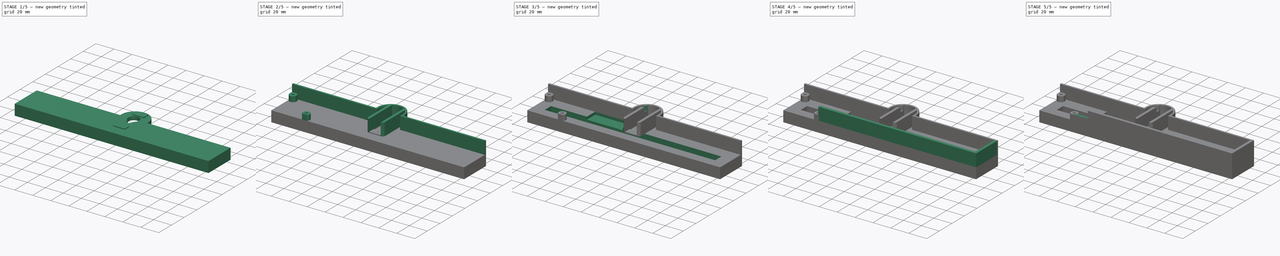
[diagram: build sequence overview — one tinted view per stage of 5, left to right]
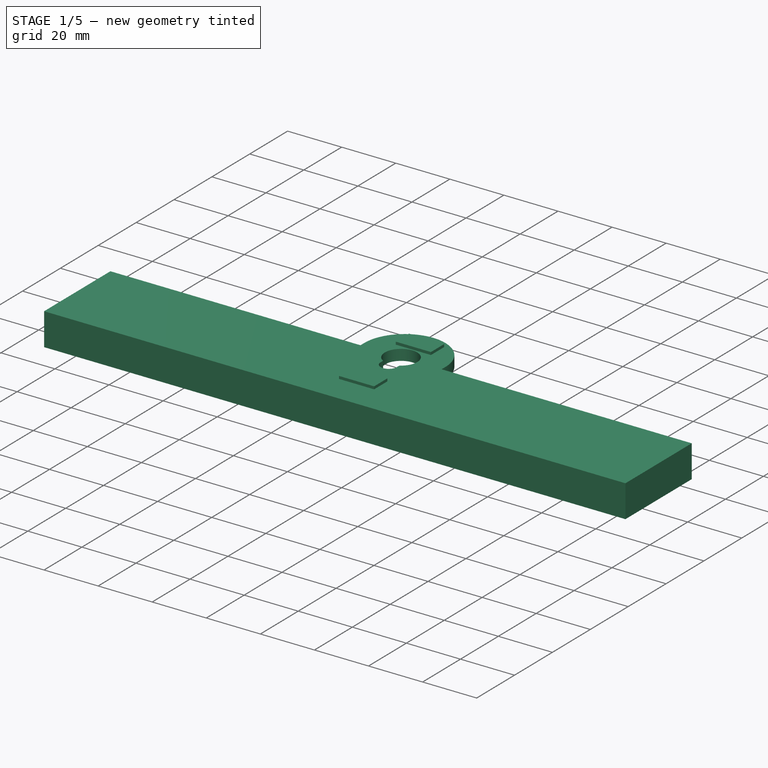
[diagram: stage 1 of 5 — iso view after this stage's code; geometry added in this stage tinted green]
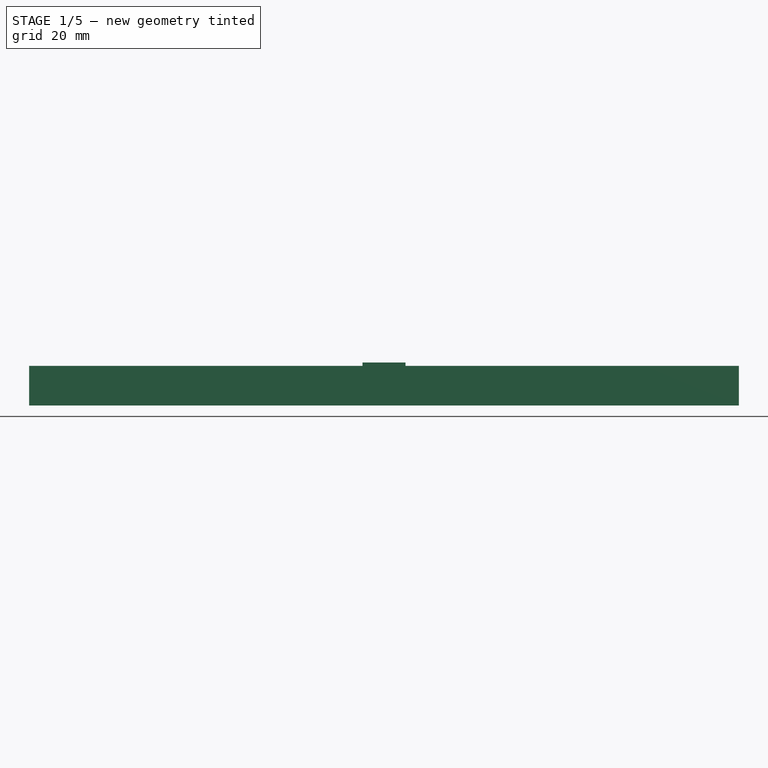
[diagram: stage 1 of 5 — front view after this stage's code; geometry added in this stage tinted green]
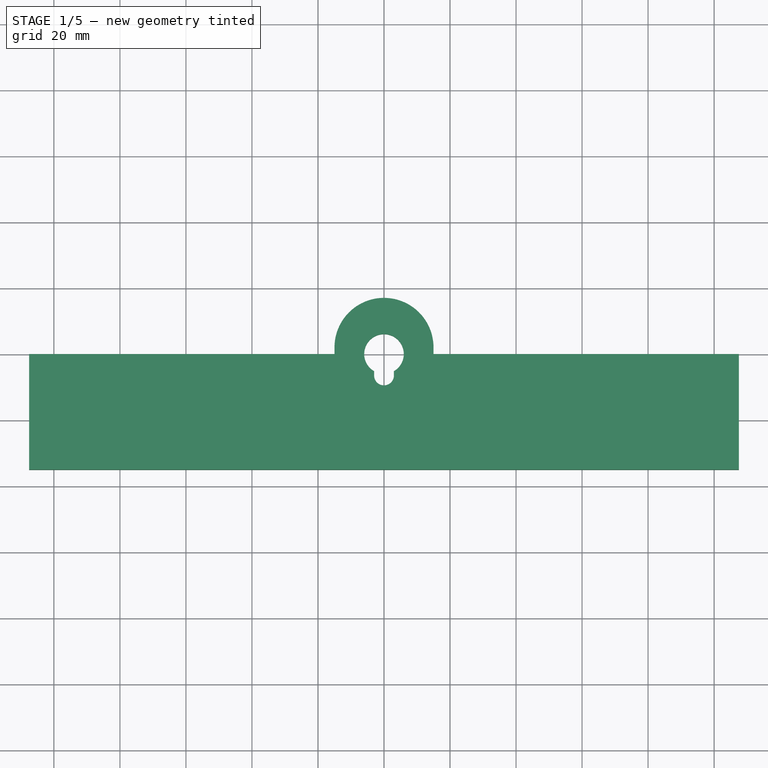
[diagram: stage 1 of 5 — top view after this stage's code; geometry added in this stage tinted green]
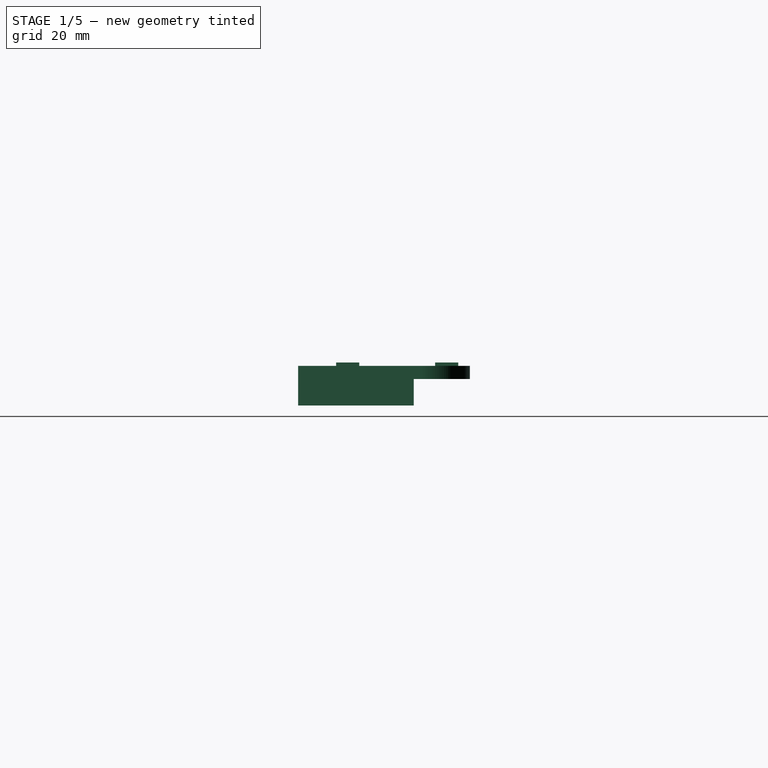
[diagram: stage 1 of 5 — right view after this stage's code; geometry added in this stage tinted green]
FCSTD DOCUMENT  (FreeCAD 0.20R29410 (Git))
Label: kitathermometer
License: All rights reserved
LicenseURL: http://en.wikipedia.org/wiki/All_rights_reserved
objects: Sketcher::SketchObject×19, PartDesign::Pad×11, PartDesign::Pocket×8, PartDesign::Fillet×1, PartDesign::Body×1
note: 60 computed .brp shape members not serialized (recipe doc carries the construction recipe); baked Part::Feature solids carry a one-line shape summary decoded from their .brp

FEATURE [Sketcher::SketchObject] Sketch
  FullyConstrained = true
  MapMode = 5
  Support = -> [XY_Plane]
  sketch-geometry (6):
    g0: LineSegment StartX=107.5 StartY=0 StartZ=0 EndX=107.5 EndY=-35 EndZ=0
    g1: LineSegment StartX=107.5 StartY=-35 StartZ=0 EndX=-107.5 EndY=-35 EndZ=0
    g2: LineSegment StartX=-107.5 StartY=-35 StartZ=0 EndX=-107.5 EndY=0 EndZ=0
    g3: LineSegment StartX=-107.5 StartY=0 StartZ=0 EndX=-0.930233 EndY=-9.95664 EndZ=0
    g4: LineSegment StartX=0.930233 StartY=-9.95664 StartZ=0 EndX=107.5 EndY=0 EndZ=0
    g5: ArcOfCircle CenterX=0 CenterY=0 CenterZ=0 NormalX=0 NormalY=0 NormalZ=1 AngleXU=0 Radius=10 StartAngle=4.61923 EndAngle=4.80555
  constraints (16):
    c: Coincident(g0,g1)
    c: Coincident(g1,g2)
    c: Horizontal(g1)
    c: Vertical(g0)
    c: Vertical(g2)
    c: DistanceX(g2,g0) = 215
    c: DistanceY(g2,g2) = 35
    c: Coincident(g3,g2)
    c: Coincident(g4,g0)
    c: Equal(g4,g3)
    c: Coincident(g5,g-1)
    c: Radius(g5) = 10
    c: Tangent(g3,g5) = -1.5708
    c: Tangent(g4,g5) = -1.5708
    c: Horizontal(g0,g2)
    c: Horizontal(g2,g5)
FEATURE [PartDesign::Pad] Pad
  Direction = (0,0,1)
  Length = 8
  Length2 = 10
  Profile = -> Sketch
  ReferenceAxis = -> Sketch [N_Axis]
  Type = 0
FEATURE [Sketcher::SketchObject] Sketch001
  ExternalGeometry = -> [Pad]
  FullyConstrained = true
  MapMode = 5
  Placement = pos=(0,0,8) rot=(0,0,1;0rad)
  Support = -> [Pad]
  sketch-geometry (8):
    g0: LineSegment StartX=107.5 StartY=0 StartZ=0 EndX=107.5 EndY=-35 EndZ=0
    g1: LineSegment StartX=107.5 StartY=-35 StartZ=0 EndX=-107.5 EndY=-35 EndZ=0
    g2: LineSegment StartX=-107.5 StartY=-35 StartZ=0 EndX=-107.5 EndY=0 EndZ=0
    g3: LineSegment StartX=-107.5 StartY=0 StartZ=0 EndX=-15 EndY=0 EndZ=0
    g4: LineSegment StartX=-15 StartY=0 StartZ=0 EndX=-15 EndY=2 EndZ=0
    g5: LineSegment StartX=15 StartY=2 StartZ=0 EndX=15 EndY=0 EndZ=0
    g6: LineSegment StartX=15 StartY=0 StartZ=0 EndX=107.5 EndY=0 EndZ=0
    g7: ArcOfCircle CenterX=0 CenterY=2 CenterZ=0 NormalX=0 NormalY=0 NormalZ=1 AngleXU=0 Radius=15 StartAngle=0 EndAngle=3.14159
  constraints (23):
    c: Coincident(g0,g1)
    c: Coincident(g1,g2)
    c: Vertical(g0)
    c: Vertical(g2)
    c: PointOnObject(g3,g-1)
    c: Coincident(g3,g4)
    c: Vertical(g4)
    c: PointOnObject(g5,g-1)
    c: Vertical(g5)
    c: Coincident(g5,g6)
    c: Coincident(g6,g0)
    c: Horizontal(g6)
    c: Horizontal(g4,g5)
    c: PointOnObject(g7,g-2)
    c: Coincident(g7,g4)
    c: Coincident(g5,g7)
    c: Coincident(g1,g-3)
    c: Coincident(g0,g-3)
    c: Radius(g7) = 15
    c: DistanceY(g4,g4) = 2
    c: Horizontal(g5,g7)
    c: Coincident(g2,g3)
    c: Horizontal(g3)
FEATURE [PartDesign::Pad] Pad001
  BaseFeature = -> Pad
  Direction = (0,0,1)
  Length = 4
  Length2 = 10
  Profile = -> Sketch001
  ReferenceAxis = -> Sketch001 [N_Axis]
  Type = 0
FEATURE [Sketcher::SketchObject] Sketch002
  FullyConstrained = true
  MapMode = 5
  Placement = pos=(0,0,12) rot=(0,0,1;0rad)
  Support = -> [Pad001]
  sketch-geometry (4):
    g0: ArcOfCircle CenterX=0 CenterY=0 CenterZ=0 NormalX=0 NormalY=0 NormalZ=1 AngleXU=0 Radius=6 StartAngle=5.23599 EndAngle=10.472
    g1: ArcOfCircle CenterX=0 CenterY=-6.5 CenterZ=0 NormalX=0 NormalY=0 NormalZ=1 AngleXU=0 Radius=3 StartAngle=3.14159 EndAngle=6.28319
    g2: LineSegment StartX=3 StartY=-5.19615 StartZ=0 EndX=3 EndY=-6.5 EndZ=0
    g3: LineSegment StartX=-3 StartY=-5.19615 StartZ=0 EndX=-3 EndY=-6.5 EndZ=0
  constraints (13):
    c: Coincident(g0,g-1)
    c: PointOnObject(g1,g-2)
    c: Radius(g0) = 6
    c: Radius(g1) = 3
    c: Horizontal(g1,g1)
    c: Horizontal(g1,g1)
    c: Coincident(g2,g0)
    c: Coincident(g2,g1)
    c: Coincident(g3,g0)
    c: Coincident(g3,g1)
    c: Vertical(g2)
    c: Vertical(g3)
    c: DistanceY(g1,g0) = 6.5
FEATURE [PartDesign::Pocket] Pocket
  BaseFeature = -> Pad001
  Direction = (0,0,-1)
  Length = 5
  Length2 = 5
  Profile = -> Sketch002
  ReferenceAxis = -> Sketch002 [N_Axis]
  Type = 0
FEATURE [Sketcher::SketchObject] Sketch003
  FullyConstrained = true
  MapMode = 5
  Placement = pos=(0,0,12) rot=(0,0,1;0rad)
  Support = -> [Pocket]
  sketch-geometry (8):
    g0: LineSegment StartX=-6.5 StartY=13.5 StartZ=0 EndX=6.5 EndY=13.5 EndZ=0
    g1: LineSegment StartX=6.5 StartY=13.5 StartZ=0 EndX=6.5 EndY=6.5 EndZ=0
    g2: LineSegment StartX=6.5 StartY=6.5 StartZ=0 EndX=-6.5 EndY=6.5 EndZ=0
    g3: LineSegment StartX=-6.5 StartY=6.5 StartZ=0 EndX=-6.5 EndY=13.5 EndZ=0
    g4: LineSegment StartX=-6.5 StartY=-16.5 StartZ=0 EndX=6.5 EndY=-16.5 EndZ=0
    g5: LineSegment StartX=6.5 StartY=-16.5 StartZ=0 EndX=6.5 EndY=-23.5 EndZ=0
    g6: LineSegment StartX=6.5 StartY=-23.5 StartZ=0 EndX=-6.5 EndY=-23.5 EndZ=0
    g7: LineSegment StartX=-6.5 StartY=-23.5 StartZ=0 EndX=-6.5 EndY=-16.5 EndZ=0
  constraints (24):
    c: Coincident(g0,g1)
    c: Coincident(g1,g2)
    c: Coincident(g2,g3)
    c: Coincident(g3,g0)
    c: Horizontal(g0)
    c: Horizontal(g2)
    c: Vertical(g1)
    c: Vertical(g3)
    c: Coincident(g4,g5)
    c: Coincident(g5,g6)
    c: Coincident(g6,g7)
    c: Coincident(g7,g4)
    c: Horizontal(g4)
    c: Horizontal(g6)
    c: Vertical(g5)
    c: Vertical(g7)
    c: Vertical(g4,g1)
    c: Vertical(g4,g2)
    c: DistanceY(g4,g1) = 23
    c: DistanceY(g-1,g1) = 6.5
    c: DistanceX(g2,g2) = 13
    c: DistanceX(g-1,g1) = 6.5
    c: Equal(g3,g7)
    c: DistanceY(g1,g1) = 7
FEATURE [PartDesign::Pad] Pad002
  BaseFeature = -> Pocket
  Direction = (0,0,1)
  Length = 1
  Length2 = 10
  Profile = -> Sketch003
  ReferenceAxis = -> Sketch003 [N_Axis]
  Type = 0
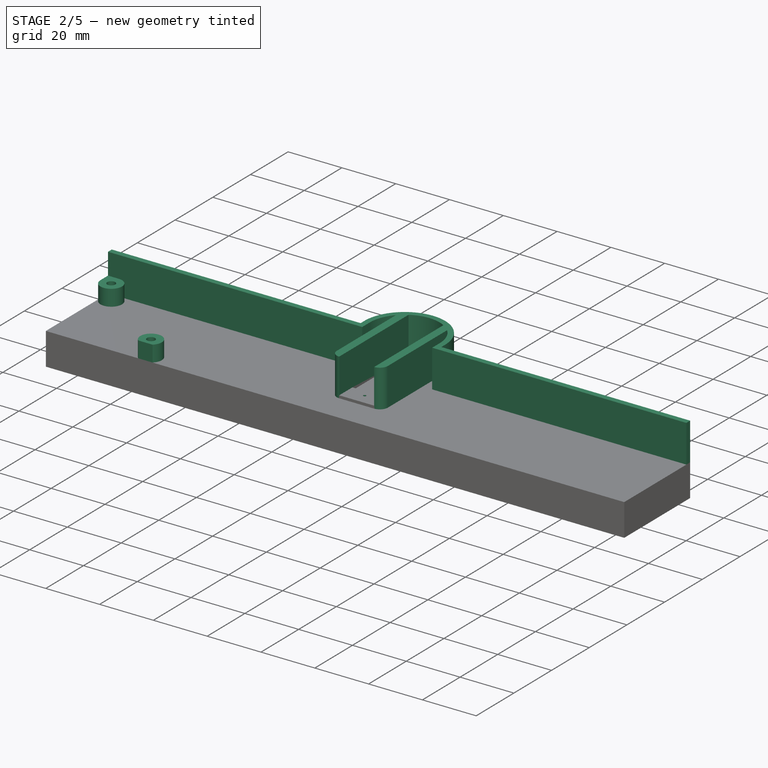
[diagram: stage 2 of 5 — iso view after this stage's code; geometry added in this stage tinted green]
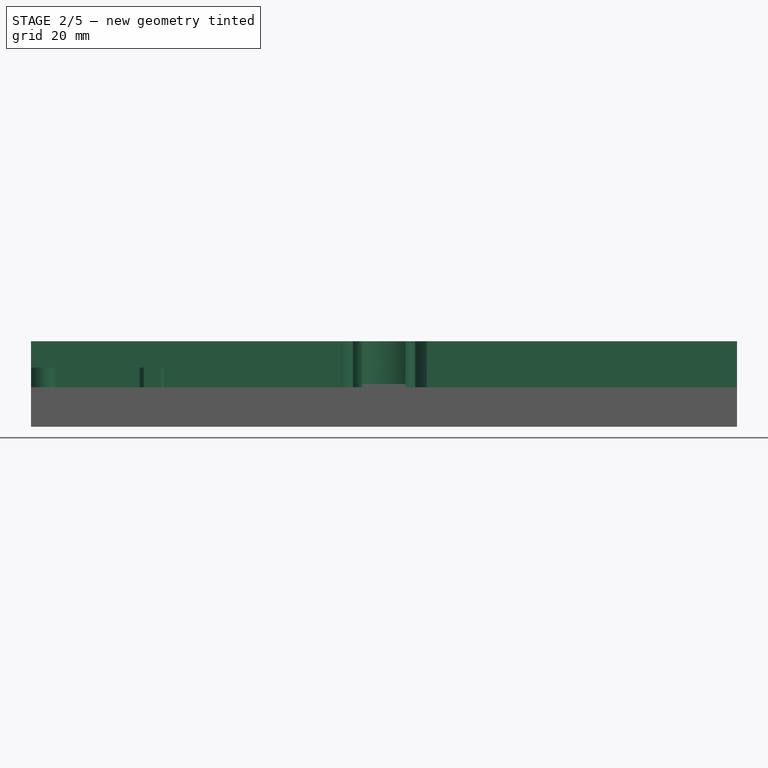
[diagram: stage 2 of 5 — front view after this stage's code; geometry added in this stage tinted green]
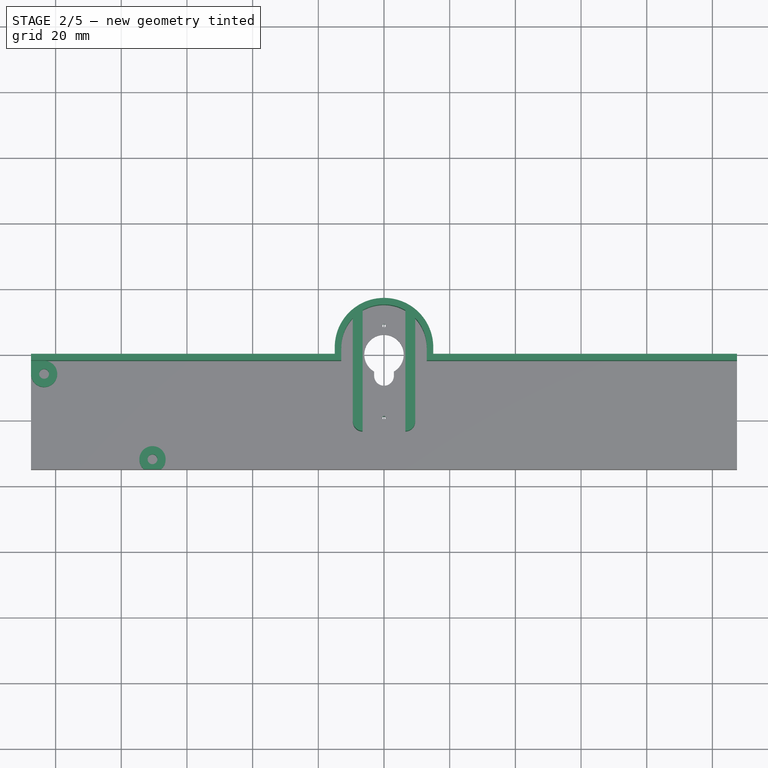
[diagram: stage 2 of 5 — top view after this stage's code; geometry added in this stage tinted green]
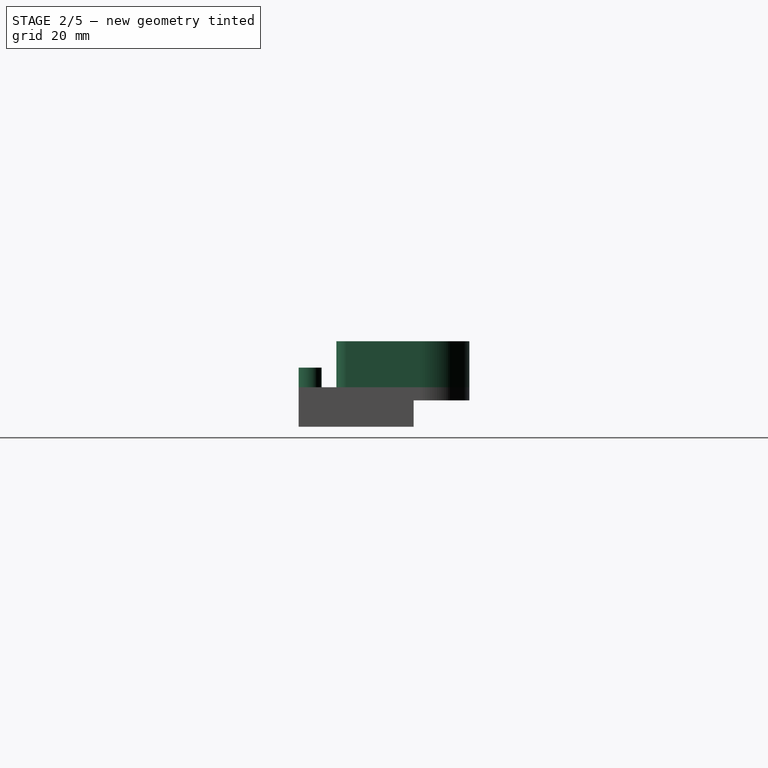
[diagram: stage 2 of 5 — right view after this stage's code; geometry added in this stage tinted green]
FEATURE [Sketcher::SketchObject] Sketch013
  FullyConstrained = true
  MapMode = 5
  Placement = pos=(0,0,12) rot=(0,0,1;0rad)
  sketch-geometry (6):
    g0: LineSegment StartX=104.5 StartY=-2 StartZ=0 EndX=107.5 EndY=-2 EndZ=0
    g1: LineSegment StartX=107.5 StartY=-2 StartZ=0 EndX=107.5 EndY=-35 EndZ=0
    g2: LineSegment StartX=107.5 StartY=-35 StartZ=0 EndX=-68.5 EndY=-35 EndZ=0
    g3: LineSegment StartX=-68.5 StartY=-35 StartZ=0 EndX=-68.5 EndY=-32 EndZ=0
    g4: LineSegment StartX=-68.5 StartY=-32 StartZ=0 EndX=104.5 EndY=-32 EndZ=0
    g5: LineSegment StartX=104.5 StartY=-32 StartZ=0 EndX=104.5 EndY=-2 EndZ=0
  constraints (18):
    c: Coincident(g0,g1)
    c: Coincident(g1,g2)
    c: Horizontal(g0)
    c: Horizontal(g2)
    c: Coincident(g2,g3)
    c: Vertical(g3)
    c: Coincident(g3,g4)
    c: Horizontal(g4)
    c: Coincident(g4,g5)
    c: Coincident(g5,g0)
    c: Vertical(g5)
    c: DistanceX(g0,g0) = 3
    c: DistanceY(g3,g3) = 3
    c: DistanceX(g-1,g0) = 107.5
    c: Vertical(g1)
    c: DistanceY(g1,g1) = 33
    c: DistanceY(g0,g-1) = 2
    c: DistanceX(g2,g2) = 176
FEATURE [Sketcher::SketchObject] Sketch004
  FullyConstrained = true
  MapMode = 5
  Placement = pos=(0,0,13) rot=(0,0,1;0rad)
  Support = -> [Pad002]
  sketch-geometry (2):
    g0: Circle CenterX=0 CenterY=8.75 CenterZ=0 NormalX=0 NormalY=0 NormalZ=1 AngleXU=0 Radius=0.5
    g1: Circle CenterX=0 CenterY=-19.25 CenterZ=0 NormalX=0 NormalY=0 NormalZ=1 AngleXU=0 Radius=0.5
  constraints (6):
    c: PointOnObject(g0,g-2)
    c: PointOnObject(g1,g-2)
    c: DistanceY(g1,g0) = 28
    c: DistanceY(g-1,g0) = 8.75
    c: Diameter(g0) = 1
    c: Equal(g1,g0)
FEATURE [PartDesign::Pocket] Pocket001
  BaseFeature = -> Pad002
  Direction = (0,0,-1)
  Length = 5
  Length2 = 5
  Profile = -> Sketch004
  ReferenceAxis = -> Sketch004 [N_Axis]
  Type = 1
FEATURE [Sketcher::SketchObject] Sketch005
  ExternalGeometry = -> [Pocket001]
  FullyConstrained = true
  MapMode = 5
  Placement = pos=(0,0,12) rot=(0,0,1;0rad)
  Support = -> [Pocket001]
  sketch-geometry (8):
    g0: ArcOfCircle CenterX=-6.50002 CenterY=10.5 CenterZ=0 NormalX=0 NormalY=0 NormalZ=1 AngleXU=0 Radius=3 StartAngle=1.57079 EndAngle=3.14159
    g1: ArcOfCircle CenterX=-6.50002 CenterY=-20.5 CenterZ=0 NormalX=0 NormalY=0 NormalZ=1 AngleXU=0 Radius=3 StartAngle=3.14159 EndAngle=4.7124
    g2: ArcOfCircle CenterX=6.5 CenterY=-20.5 CenterZ=0 NormalX=0 NormalY=0 NormalZ=1 AngleXU=0 Radius=3 StartAngle=4.71239 EndAngle=6.28319
    g3: ArcOfCircle CenterX=6.5 CenterY=10.5 CenterZ=0 NormalX=0 NormalY=0 NormalZ=1 AngleXU=0 Radius=3 StartAngle=0 EndAngle=1.5708
    g4: LineSegment StartX=6.5 StartY=13.5 StartZ=0 EndX=6.5 EndY=-23.5 EndZ=0
    g5: LineSegment StartX=9.5 StartY=10.5 StartZ=0 EndX=9.5 EndY=-20.5 EndZ=0
    g6: LineSegment StartX=-9.50002 StartY=10.5 StartZ=0 EndX=-9.50002 EndY=-20.5 EndZ=0
    g7: LineSegment StartX=-6.5 StartY=-23.5 StartZ=0 EndX=-6.5 EndY=13.5 EndZ=0
  constraints (26):
    c: Vertical(g4)
    c: Coincident(g5,g3)
    c: Coincident(g5,g2)
    c: Coincident(g6,g0)
    c: Coincident(g6,g1)
    c: Vertical(g6)
    c: Coincident(g7,g1)
    c: Coincident(g7,g0)
    c: Vertical(g7)
    c: Horizontal(g0,g3)
    c: Horizontal(g2,g4)
    c: Coincident(g1,g-3)
    c: Coincident(g2,g-3)
    c: Horizontal(g2,g2)
    c: Horizontal(g1,g1)
    c: Angle(g2) = 1.5708
    c: Horizontal(g1,g2)
    c: Horizontal(g0,g0)
    c: Horizontal(g3,g0)
    c: Vertical(g5)
    c: Coincident(g3,g4)
    c: Equal(g1,g2)
    c: Equal(g2,g3)
    c: Equal(g3,g0)
    c: Radius(g2) = 3
    c: Coincident(g3,g-4)
FEATURE [PartDesign::Pad] Pad003
  BaseFeature = -> Pocket001
  Direction = (0,0,1)
  Length = 14
  Length2 = 10
  Profile = -> Sketch005
  ReferenceAxis = -> Sketch005 [N_Axis]
  Type = 0
FEATURE [Sketcher::SketchObject] Sketch006
  ExternalGeometry = -> [Pad003]
  FullyConstrained = true
  MapMode = 5
  Placement = pos=(0,0,12) rot=(0,0,1;0rad)
  Support = -> [Pad003]
  sketch-geometry (12):
    g0: LineSegment StartX=-107.5 StartY=0 StartZ=0 EndX=-15 EndY=0 EndZ=0
    g1: LineSegment StartX=-13 StartY=-2 StartZ=0 EndX=-107.5 EndY=-2 EndZ=0
    g2: LineSegment StartX=-107.5 StartY=-2 StartZ=0 EndX=-107.5 EndY=0 EndZ=0
    g3: LineSegment StartX=15 StartY=0 StartZ=0 EndX=107.5 EndY=0 EndZ=0
    g4: LineSegment StartX=107.5 StartY=0 StartZ=0 EndX=107.5 EndY=-2 EndZ=0
    g5: LineSegment StartX=107.5 StartY=-2 StartZ=0 EndX=13 EndY=-2 EndZ=0
    g6: ArcOfCircle CenterX=0 CenterY=2 CenterZ=0 NormalX=0 NormalY=0 NormalZ=1 AngleXU=0 Radius=15 StartAngle=0 EndAngle=3.14159
    g7: ArcOfCircle CenterX=0 CenterY=2 CenterZ=0 NormalX=0 NormalY=0 NormalZ=1 AngleXU=0 Radius=13 StartAngle=0 EndAngle=3.14159
    g8: LineSegment StartX=13 StartY=2 StartZ=0 EndX=13 EndY=-2 EndZ=0
    g9: LineSegment StartX=15 StartY=0 StartZ=0 EndX=15 EndY=2 EndZ=0
    g10: LineSegment StartX=-15 StartY=0 StartZ=0 EndX=-15 EndY=2 EndZ=0
    g11: LineSegment StartX=-13 StartY=2 StartZ=0 EndX=-13 EndY=-2 EndZ=0
  constraints (36):
    c: Coincident(g1,g2)
    c: Coincident(g2,g0)
    c: Horizontal(g0)
    c: Horizontal(g1)
    c: Vertical(g2)
    c: PointOnObject(g0,g-1)
    c: Coincident(g3,g4)
    c: Coincident(g4,g5)
    c: Horizontal(g3)
    c: Horizontal(g5)
    c: Vertical(g4)
    c: PointOnObject(g6,g-2)
    c: Coincident(g7,g6)
    c: Vertical(g8)
    c: Coincident(g9,g3)
    c: Coincident(g9,g6)
    c: Coincident(g10,g0)
    c: Coincident(g10,g6)
    c: Coincident(g11,g7)
    c: Coincident(g11,g1)
    c: Coincident(g5,g8)
    c: Vertical(g10)
    c: Vertical(g11)
    c: Vertical(g9)
    c: DistanceY(g10,g10) = 2
    c: Horizontal(g6,g6)
    c: Horizontal(g6,g6)
    c: Horizontal(g6,g7)
    c: Horizontal(g6,g7)
    c: DistanceY(g4,g4) = 2
    c: Horizontal(g1,g5)
    c: DistanceX(g5,g3) = 2
    c: Coincident(g7,g8)
    c: Radius(g6) = 15
    c: Coincident(g3,g-3)
    c: Equal(g0,g3)
FEATURE [PartDesign::Pad] Pad004
  BaseFeature = -> Pad003
  Direction = (0,0,1)
  Length = 14
  Length2 = 10
  Profile = -> Sketch006
  ReferenceAxis = -> Sketch006 [N_Axis]
  Type = 0
FEATURE [Sketcher::SketchObject] Sketch007
  ExternalGeometry = -> [Pad004]
  FullyConstrained = true
  MapMode = 5
  Placement = pos=(0,0,12) rot=(0,0,1;0rad)
  Support = -> [Pad004]
  sketch-geometry (7):
    g0: ArcOfCircle CenterX=-103.5 CenterY=-6 CenterZ=0 NormalX=0 NormalY=0 NormalZ=1 AngleXU=0 Radius=4 StartAngle=3.14159 EndAngle=7.85398
    g1: Circle CenterX=-103.5 CenterY=-6 CenterZ=0 NormalX=0 NormalY=0 NormalZ=1 AngleXU=0 Radius=1.5
    g2: LineSegment StartX=-103.5 StartY=-2 StartZ=0 EndX=-107.5 EndY=-2 EndZ=0
    g3: LineSegment StartX=-107.5 StartY=-2 StartZ=0 EndX=-107.5 EndY=-5.99999 EndZ=0
    g4: Circle CenterX=-70.5 CenterY=-32 CenterZ=0 NormalX=0 NormalY=0 NormalZ=1 AngleXU=0 Radius=1.5
    g5: ArcOfCircle CenterX=-70.5 CenterY=-32 CenterZ=0 NormalX=0 NormalY=0 NormalZ=1 AngleXU=0 Radius=4 StartAngle=5.43512 EndAngle=10.2728
    g6: LineSegment StartX=-73.1458 StartY=-35 StartZ=0 EndX=-67.8542 EndY=-35 EndZ=0
  constraints (19):
    c: Coincident(g1,g0)
    c: Tangent(g0,g2) = -1.5708
    c: Coincident(g2,g3)
    c: Coincident(g3,g0)
    c: Horizontal(g2)
    c: Vertical(g3)
    c: Coincident(g2,g-3)
    c: Radius(g0) = 4
    c: Diameter(g1) = 3
    c: Coincident(g5,g4)
    c: Coincident(g6,g5)
    c: Coincident(g6,g5)
    c: Horizontal(g6)
    c: Horizontal(g6,g-4)
    c: Equal(g4,g1)
    c: Equal(g5,g0)
    c: DistanceY(g4,g0) = 26
    c: DistanceX(g0,g4) = 33
    c: DistanceX(g0,g0) = 4
FEATURE [PartDesign::Pad] Pad005
  BaseFeature = -> Pad004
  Direction = (0,0,1)
  Length = 6
  Length2 = 10
  Profile = -> Sketch007
  ReferenceAxis = -> Sketch007 [N_Axis]
  Type = 0
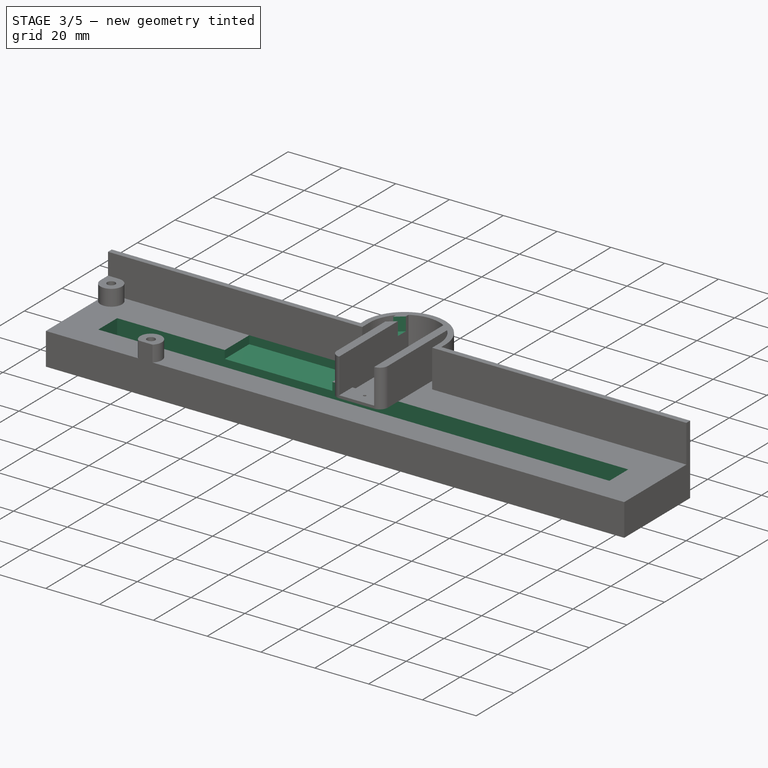
[diagram: stage 3 of 5 — iso view after this stage's code; geometry added in this stage tinted green]
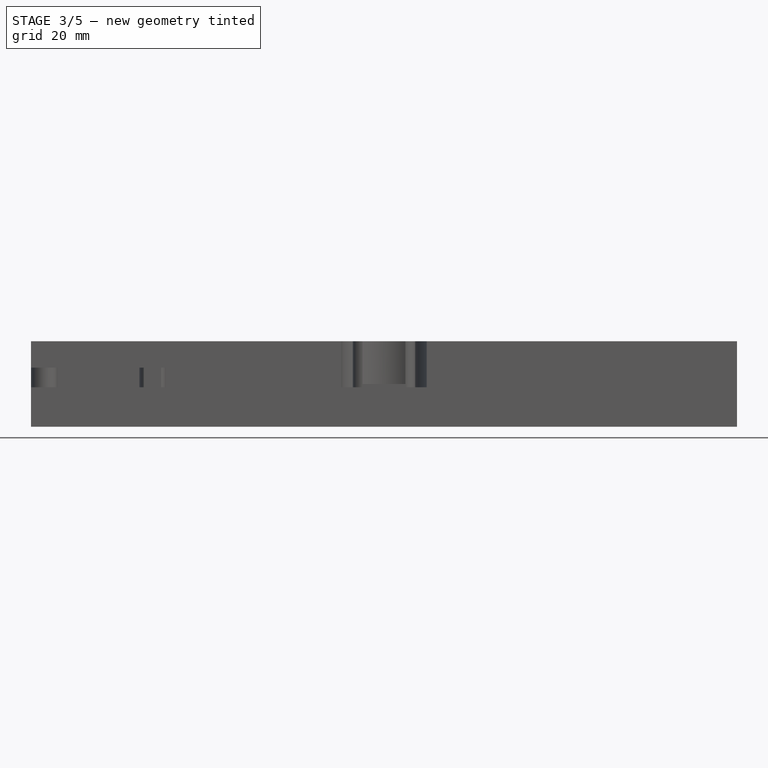
[diagram: stage 3 of 5 — front view after this stage's code; geometry added in this stage tinted green]
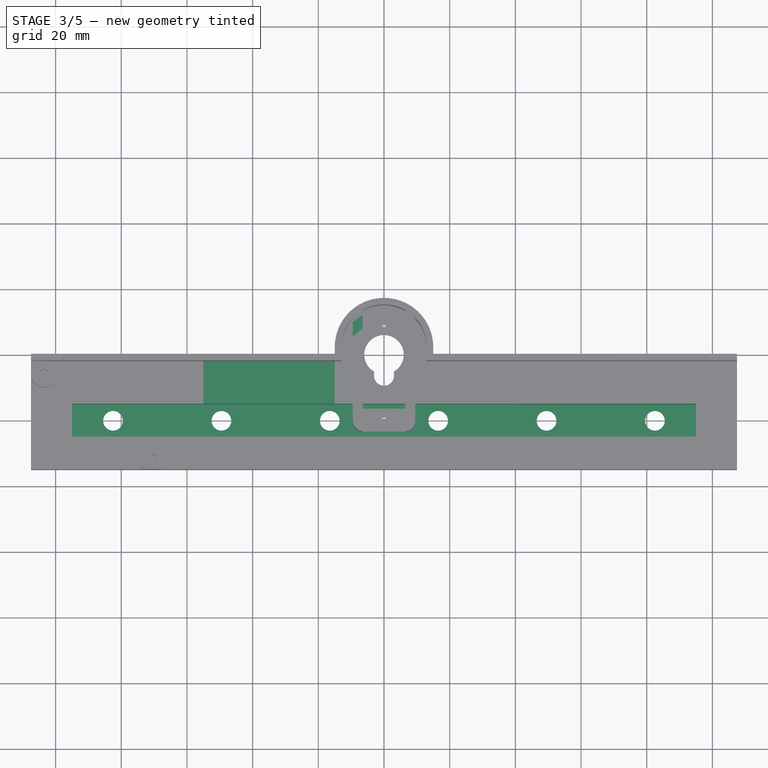
[diagram: stage 3 of 5 — top view after this stage's code; geometry added in this stage tinted green]
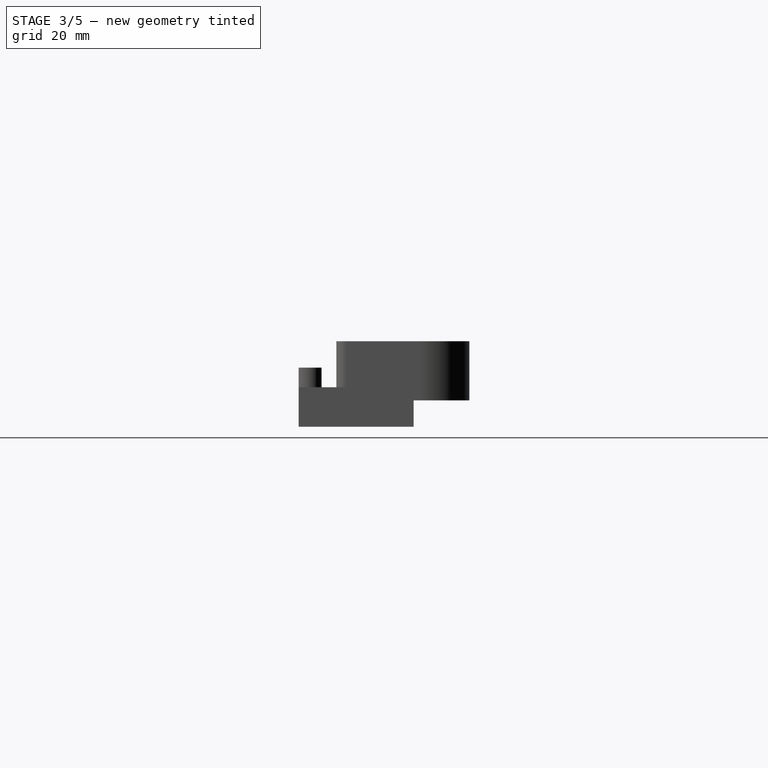
[diagram: stage 3 of 5 — right view after this stage's code; geometry added in this stage tinted green]
FEATURE [Sketcher::SketchObject] Sketch008
  FullyConstrained = false
  MapMode = 5
  Placement = pos=(0,0,26) rot=(0,0,1;0rad)
  Support = -> [Pad005]
  sketch-geometry (4):
    g0: LineSegment StartX=-10.1134 StartY=8.97804 StartZ=0 EndX=-5.59883 EndY=12.581 EndZ=0
    g1: LineSegment StartX=-5.59883 StartY=12.581 StartZ=0 EndX=-5.59883 EndY=8.36723 EndZ=0
    g2: LineSegment StartX=-5.59883 StartY=8.36723 StartZ=0 EndX=-10.1134 EndY=4.7643 EndZ=0
    g3: LineSegment StartX=-10.1134 StartY=4.7643 StartZ=0 EndX=-10.1134 EndY=8.97804 EndZ=0
  constraints (7):
    c: Coincident(g0,g1)
    c: Vertical(g1)
    c: Coincident(g1,g2)
    c: Coincident(g2,g3)
    c: Coincident(g3,g0)
    c: Vertical(g3)
    c: Parallel(g2,g0)
FEATURE [PartDesign::Pocket] Pocket002
  BaseFeature = -> Pad005
  Direction = (0,0,-1)
  Length = 5
  Length2 = 5
  Profile = -> Sketch008
  ReferenceAxis = -> Sketch008 [N_Axis]
  Type = 0
FEATURE [Sketcher::SketchObject] Sketch009
  FullyConstrained = true
  MapMode = 5
  Placement = pos=(0,0,12) rot=(0,0,1;0rad)
  Support = -> [Pocket002]
  sketch-geometry (12):
    g0: Circle CenterX=-82.5 CenterY=-20 CenterZ=0 NormalX=0 NormalY=0 NormalZ=1 AngleXU=0 Radius=3
    g1: Circle CenterX=-49.5 CenterY=-20 CenterZ=0 NormalX=0 NormalY=0 NormalZ=1 AngleXU=0 Radius=3
    g2: Circle CenterX=-16.5 CenterY=-20 CenterZ=0 NormalX=0 NormalY=0 NormalZ=1 AngleXU=0 Radius=3
    g3: Circle CenterX=16.5 CenterY=-20 CenterZ=0 NormalX=0 NormalY=0 NormalZ=1 AngleXU=0 Radius=3
    g4: Circle CenterX=49.5 CenterY=-20 CenterZ=0 NormalX=0 NormalY=0 NormalZ=1 AngleXU=0 Radius=3
    g5: Circle CenterX=82.5 CenterY=-20 CenterZ=0 NormalX=0 NormalY=0 NormalZ=1 AngleXU=0 Radius=3
    g6: LineSegment StartX=-82.5 StartY=-20 StartZ=0 EndX=-49.5 EndY=-20 EndZ=0
    g7: LineSegment StartX=-49.5 StartY=-20 StartZ=0 EndX=-16.5 EndY=-20 EndZ=0
    g8: LineSegment StartX=16.5 StartY=-20 StartZ=0 EndX=49.5 EndY=-20 EndZ=0
    g9: LineSegment StartX=49.5 StartY=-20 StartZ=0 EndX=82.5 EndY=-20 EndZ=0
    g10: LineSegment StartX=-16.5 StartY=-20 StartZ=0 EndX=0 EndY=-20 EndZ=0
    g11: LineSegment StartX=0 StartY=-20 StartZ=0 EndX=16.5 EndY=-20 EndZ=0
  constraints (31):
    c: Equal(g0,g1)
    c: Equal(g1,g2)
    c: Equal(g2,g3)
    c: Equal(g3,g4)
    c: Equal(g4,g5)
    c: Radius(g0) = 3
    c: DistanceX(g0,g1) = 33
    c: Coincident(g6,g0)
    c: Coincident(g6,g1)
    c: Coincident(g6,g7)
    c: Coincident(g7,g2)
    c: Horizontal(g8)
    c: Coincident(g8,g9)
    c: Coincident(g9,g5)
    c: Equal(g9,g8)
    c: Equal(g6,g7)
    c: Coincident(g4,g8)
    c: Horizontal(g9)
    c: Horizontal(g7)
    c: Horizontal(g6)
    c: DistanceY(g3,g-1) = 20
    c: Coincident(g10,g2)
    c: PointOnObject(g10,g-2)
    c: Horizontal(g10)
    c: Coincident(g10,g11)
    c: Coincident(g11,g3)
    c: Horizontal(g11)
    c: Coincident(g3,g8)
    c: DistanceX(g2,g3) = 33
    c: Equal(g10,g11)
    c: Equal(g8,g6)
FEATURE [PartDesign::Pocket] Pocket003
  BaseFeature = -> Pocket002
  Direction = (0,0,-1)
  Length = 15
  Length2 = 5
  Profile = -> Sketch009
  ReferenceAxis = -> Sketch009 [N_Axis]
  Type = 0
FEATURE [Sketcher::SketchObject] Sketch010
  FullyConstrained = true
  MapMode = 5
  Placement = pos=(0,0,12) rot=(0,0,1;0rad)
  Support = -> [Pocket003]
  sketch-geometry (4):
    g0: LineSegment StartX=-95 StartY=-15 StartZ=0 EndX=95 EndY=-15 EndZ=0
    g1: LineSegment StartX=95 StartY=-15 StartZ=0 EndX=95 EndY=-25 EndZ=0
    g2: LineSegment StartX=95 StartY=-25 StartZ=0 EndX=-95 EndY=-25 EndZ=0
    g3: LineSegment StartX=-95 StartY=-25 StartZ=0 EndX=-95 EndY=-15 EndZ=0
  constraints (12):
    c: Coincident(g0,g1)
    c: Coincident(g1,g2)
    c: Coincident(g2,g3)
    c: Coincident(g3,g0)
    c: Horizontal(g0)
    c: Horizontal(g2)
    c: Vertical(g1)
    c: Vertical(g3)
    c: DistanceX(g0,g0) = 190
    c: DistanceX(g0,g-1) = 95
    c: DistanceY(g3,g3) = 10
    c: DistanceY(g0,g-1) = 15
FEATURE [PartDesign::Pocket] Pocket004
  BaseFeature = -> Pocket003
  Direction = (0,0,-1)
  Length = 10
  Length2 = 5
  Profile = -> Sketch010
  ReferenceAxis = -> Sketch010 [N_Axis]
  Type = 0
FEATURE [Sketcher::SketchObject] Sketch011
  FullyConstrained = true
  MapMode = 5
  Placement = pos=(0,0,12) rot=(0,0,1;0rad)
  Support = -> [Pocket004]
  sketch-geometry (4):
    g0: LineSegment StartX=-55 StartY=-2 StartZ=0 EndX=-15 EndY=-2 EndZ=0
    g1: LineSegment StartX=-15 StartY=-2 StartZ=0 EndX=-15 EndY=-15 EndZ=0
    g2: LineSegment StartX=-15 StartY=-15 StartZ=0 EndX=-55 EndY=-15 EndZ=0
    g3: LineSegment StartX=-55 StartY=-15 StartZ=0 EndX=-55 EndY=-2 EndZ=0
  constraints (12):
    c: Coincident(g0,g1)
    c: Coincident(g1,g2)
    c: Coincident(g2,g3)
    c: Coincident(g3,g0)
    c: Horizontal(g0)
    c: Horizontal(g2)
    c: Vertical(g1)
    c: Vertical(g3)
    c: DistanceY(g1,g1) = 13
    c: DistanceX(g0,g0) = 40
    c: DistanceY(g0,g-1) = 2
    c: DistanceX(g0,g-1) = 15
FEATURE [PartDesign::Pocket] Pocket005
  BaseFeature = -> Pocket004
  Direction = (0,0,-1)
  Length = 3
  Length2 = 5
  Profile = -> Sketch011
  ReferenceAxis = -> Sketch011 [N_Axis]
  Type = 0
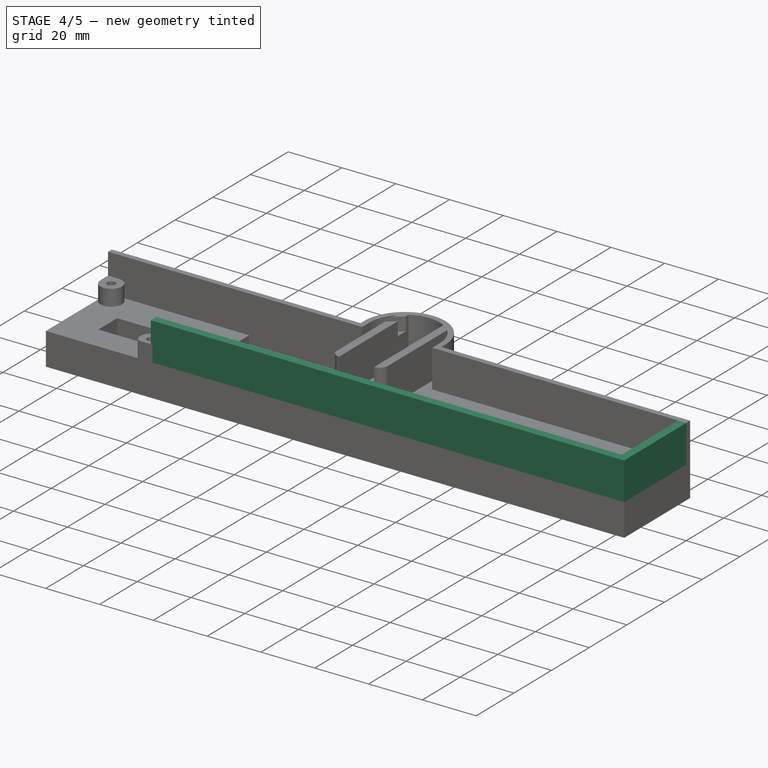
[diagram: stage 4 of 5 — iso view after this stage's code; geometry added in this stage tinted green]
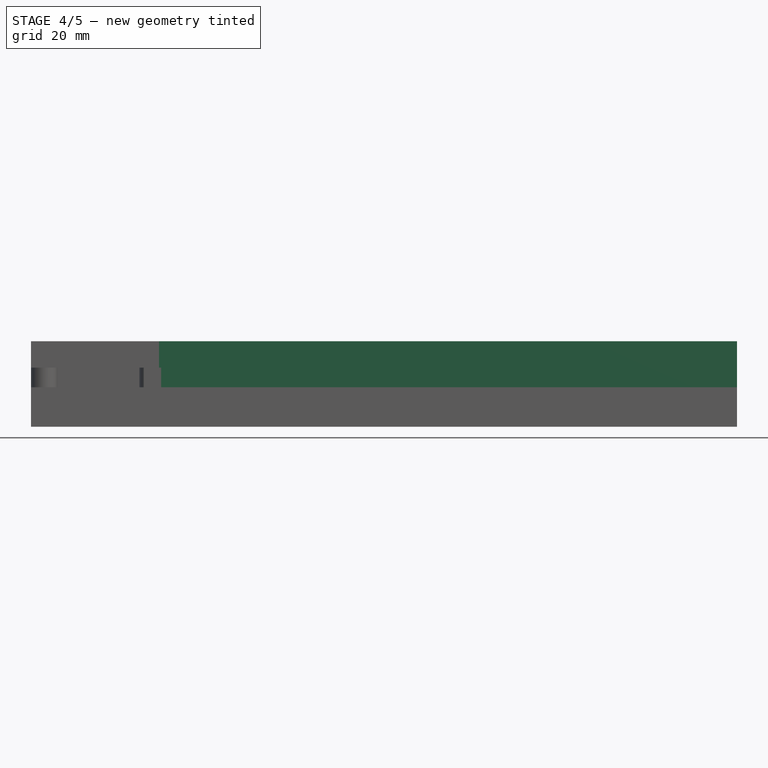
[diagram: stage 4 of 5 — front view after this stage's code; geometry added in this stage tinted green]
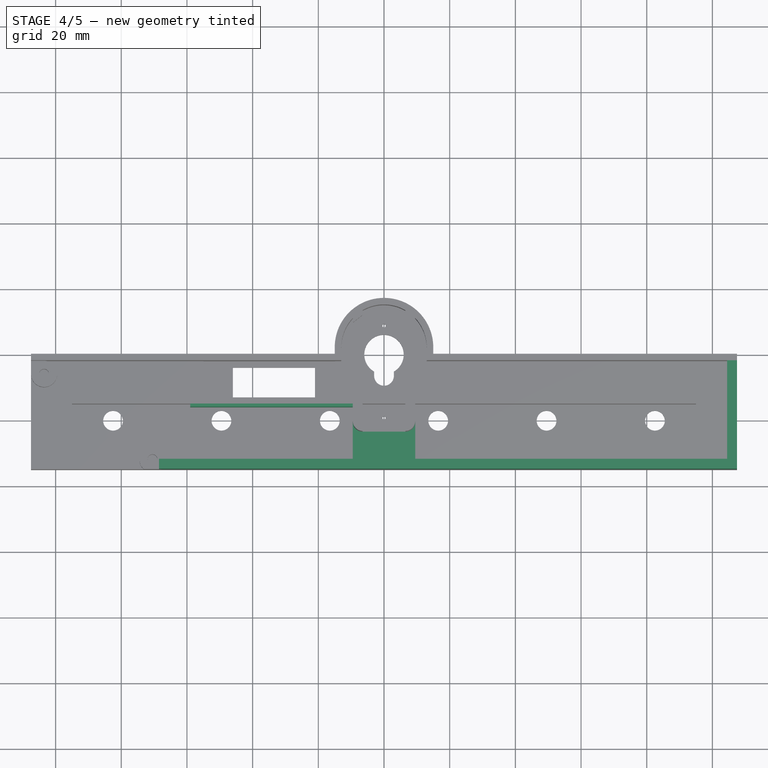
[diagram: stage 4 of 5 — top view after this stage's code; geometry added in this stage tinted green]
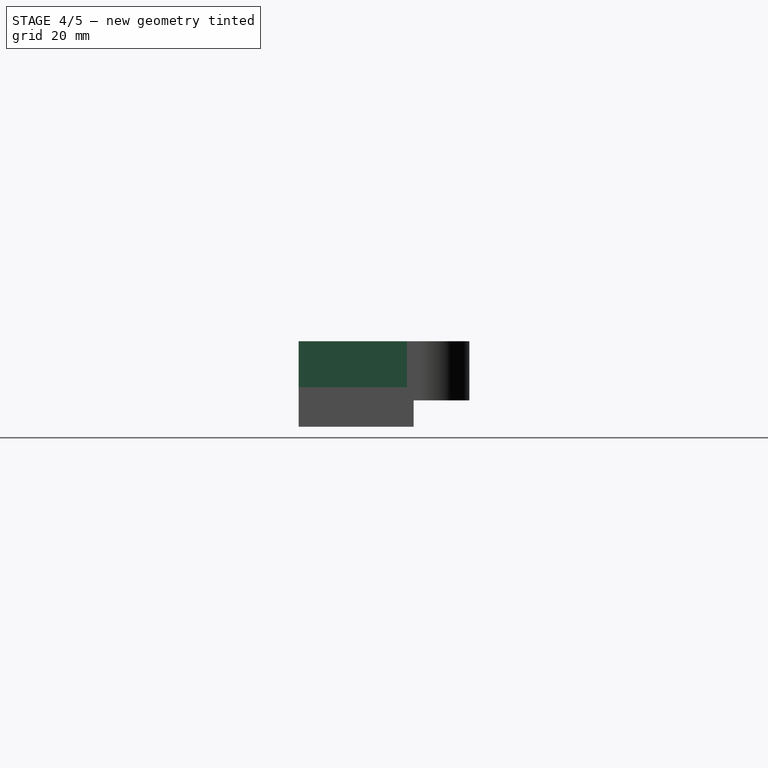
[diagram: stage 4 of 5 — right view after this stage's code; geometry added in this stage tinted green]
FEATURE [PartDesign::Pad] Pad006
  BaseFeature = -> Pocket005
  Direction = (0,0,1)
  Length = 14
  Length2 = 10
  Profile = -> Sketch013
  ReferenceAxis = -> Sketch013 [N_Axis]
  Type = 0
FEATURE [Sketcher::SketchObject] Sketch014
  ExternalGeometry = -> [Pocket005]
  FullyConstrained = true
  MapMode = 5
  Placement = pos=(0,0,12) rot=(0,0,1;0rad)
  Support = -> [Pocket005]
  sketch-geometry (4):
    g0: LineSegment StartX=-46 StartY=-4 StartZ=0 EndX=-21 EndY=-4 EndZ=0
    g1: LineSegment StartX=-21 StartY=-4 StartZ=0 EndX=-21 EndY=-13 EndZ=0
    g2: LineSegment StartX=-21 StartY=-13 StartZ=0 EndX=-46 EndY=-13 EndZ=0
    g3: LineSegment StartX=-46 StartY=-13 StartZ=0 EndX=-46 EndY=-4 EndZ=0
  constraints (12):
    c: Coincident(g0,g1)
    c: Coincident(g1,g2)
    c: Coincident(g2,g3)
    c: Coincident(g3,g0)
    c: Horizontal(g0)
    c: Horizontal(g2)
    c: Vertical(g1)
    c: Vertical(g3)
    c: DistanceY(g3,g3) = 9
    c: DistanceY(g0,g-1) = 4
    c: DistanceX(g0,g0) = 25
    c: DistanceX(g1,g-3) = 6
FEATURE [PartDesign::Pocket] Pocket006
  BaseFeature = -> Pad006
  Direction = (0,0,-1)
  Length = 15
  Length2 = 5
  Profile = -> Sketch014
  ReferenceAxis = -> Sketch014 [N_Axis]
  Type = 0
FEATURE [Sketcher::SketchObject] Sketch015
  FullyConstrained = false
  MapMode = 5
  Placement = pos=(0,0,12) rot=(0,0,1;0rad)
  sketch-geometry (4):
    g0: LineSegment StartX=9.5 StartY=-20.5 StartZ=0 EndX=9.5 EndY=-32.5 EndZ=0
    g1: LineSegment StartX=9.5 StartY=-32.5 StartZ=0 EndX=-9.50002 EndY=-32.5 EndZ=0
    g2: LineSegment StartX=-9.50002 StartY=-32.5 StartZ=0 EndX=-9.50002 EndY=-20.5 EndZ=0
    g3: LineSegment StartX=-9.50002 StartY=-20.5 StartZ=0 EndX=9.5 EndY=-20.5 EndZ=0
  constraints (8):
    c: Coincident(g0,g1)
    c: Coincident(g1,g2)
    c: Horizontal(g1)
    c: Vertical(g0)
    c: Vertical(g2)
    c: DistanceY(g0,g0) = 12
    c: Coincident(g3,g2)
    c: Coincident(g3,g0)
FEATURE [PartDesign::Pad] Pad007
  BaseFeature = -> Pocket006
  Direction = (0,0,1)
  Length = 1
  Length2 = 10
  Profile = -> Sketch015
  ReferenceAxis = -> Sketch015 [N_Axis]
  Type = 0
FEATURE [Sketcher::SketchObject] Sketch016
  FullyConstrained = true
  MapMode = 5
  Placement = pos=(0,-15,0) rot=(1,0,0;1.5708rad)
  sketch-geometry (4):
    g0: LineSegment StartX=-59 StartY=16 StartZ=0 EndX=-9 EndY=16 EndZ=0
    g1: LineSegment StartX=-9 StartY=16 StartZ=0 EndX=-9 EndY=7 EndZ=0
    g2: LineSegment StartX=-9 StartY=7 StartZ=0 EndX=-59 EndY=7 EndZ=0
    g3: LineSegment StartX=-59 StartY=7 StartZ=0 EndX=-59 EndY=16 EndZ=0
  constraints (12):
    c: Coincident(g0,g1)
    c: Coincident(g1,g2)
    c: Coincident(g2,g3)
    c: Coincident(g3,g0)
    c: Horizontal(g0)
    c: Horizontal(g2)
    c: Vertical(g1)
    c: Vertical(g3)
    c: DistanceX(g1,g-1) = 9
    c: DistanceX(g2,g2) = 50
    c: DistanceY(g3,g3) = 9
    c: DistanceY(g-1,g1) = 7
FEATURE [PartDesign::Pad] Pad008
  BaseFeature = -> Pad007
  Direction = (0,-1,2e-16)
  Length = 1
  Length2 = 10
  Profile = -> Sketch016
  ReferenceAxis = -> Sketch016 [N_Axis]
  Type = 0
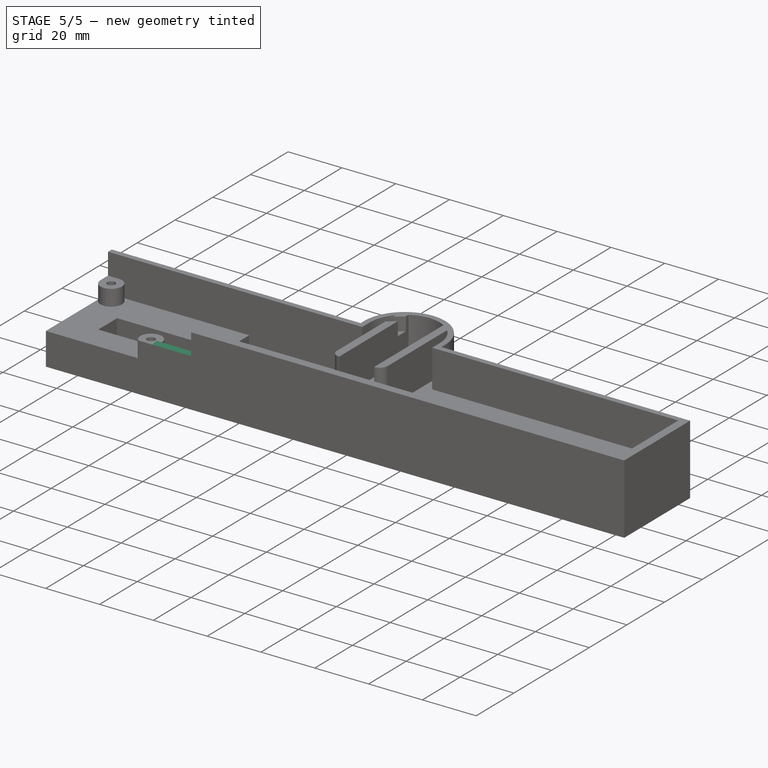
[diagram: stage 5 of 5 — iso view after this stage's code; geometry added in this stage tinted green]
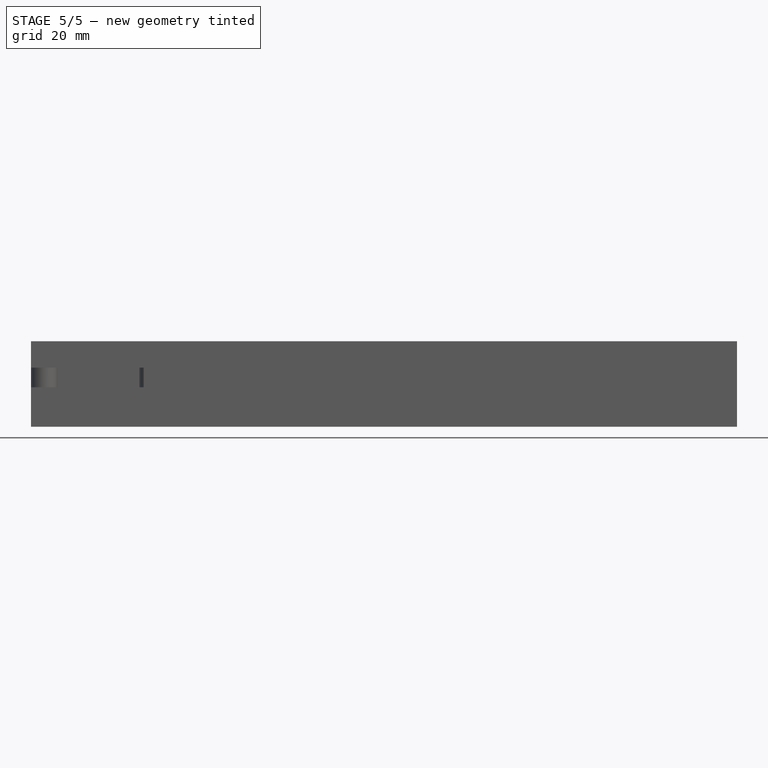
[diagram: stage 5 of 5 — front view after this stage's code; geometry added in this stage tinted green]
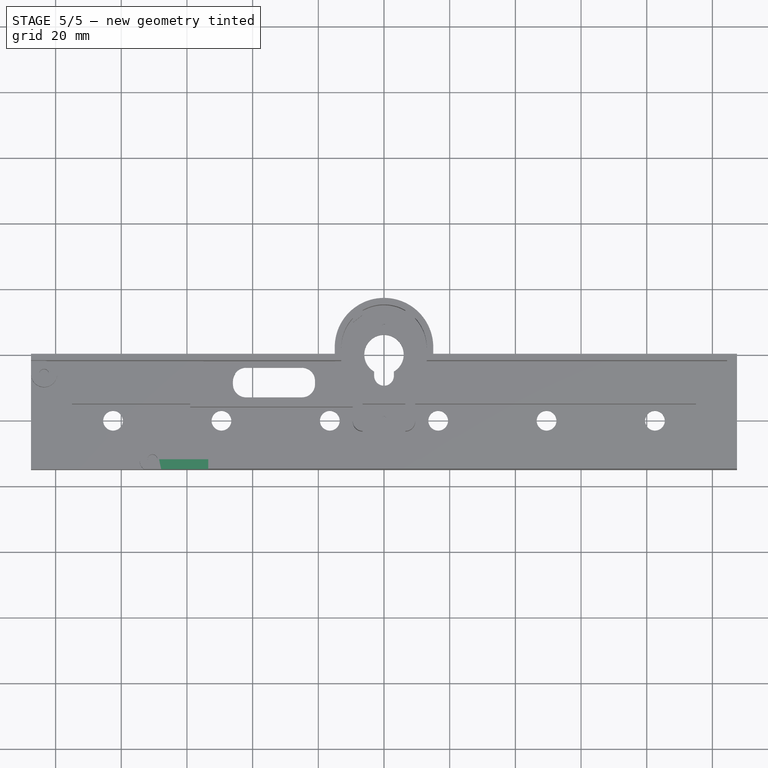
[diagram: stage 5 of 5 — top view after this stage's code; geometry added in this stage tinted green]
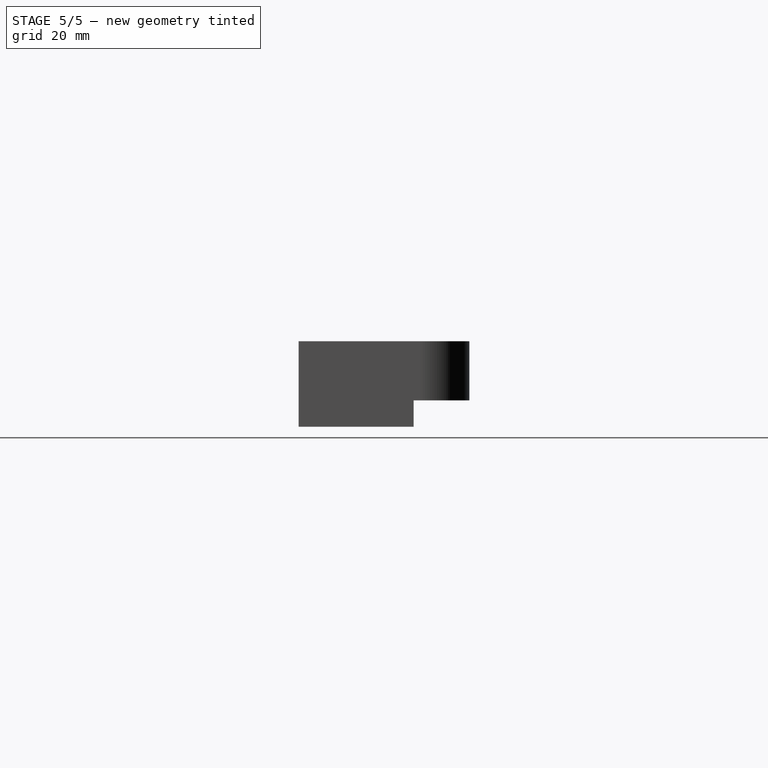
[diagram: stage 5 of 5 — right view after this stage's code; geometry added in this stage tinted green]
FEATURE [Sketcher::SketchObject] Sketch017
  FullyConstrained = false
  MapMode = 5
  Support = -> [XY_Plane]
  sketch-geometry (4):
    g0: LineSegment StartX=-1.14442 StartY=-18.3128 StartZ=0 EndX=1.99737 EndY=-18.3128 EndZ=0
    g1: LineSegment StartX=1.99737 StartY=-18.3128 StartZ=0 EndX=1.99737 EndY=-20.2144 EndZ=0
    g2: LineSegment StartX=1.99737 StartY=-20.2144 StartZ=0 EndX=-1.14442 EndY=-20.2144 EndZ=0
    g3: LineSegment StartX=-1.14442 StartY=-20.2144 StartZ=0 EndX=-1.14442 EndY=-18.3128 EndZ=0
  constraints (8):
    c: Coincident(g0,g1)
    c: Coincident(g1,g2)
    c: Coincident(g2,g3)
    c: Coincident(g3,g0)
    c: Horizontal(g0)
    c: Horizontal(g2)
    c: Vertical(g1)
    c: Vertical(g3)
FEATURE [PartDesign::Pad] Pad009
  BaseFeature = -> Pad008
  Direction = (0,0,1)
  Length = 2
  Length2 = 10
  Profile = -> Sketch017
  ReferenceAxis = -> Sketch017 [N_Axis]
  Type = 0
FEATURE [Sketcher::SketchObject] Sketch018
  ExternalGeometry = -> [Pad009]
  FullyConstrained = true
  MapMode = 5
  Placement = pos=(0,-35,0) rot=(1,0,0;1.5708rad)
  Support = -> [Pad009]
  sketch-geometry (4):
    g0: LineSegment StartX=-68.5 StartY=26 StartZ=0 EndX=-53.5 EndY=26 EndZ=0
    g1: LineSegment StartX=-53.5 StartY=26 StartZ=0 EndX=-53.5 EndY=18 EndZ=0
    g2: LineSegment StartX=-53.5 StartY=18 StartZ=0 EndX=-68.5 EndY=18 EndZ=0
    g3: LineSegment StartX=-68.5 StartY=18 StartZ=0 EndX=-68.5 EndY=26 EndZ=0
  constraints (11):
    c: Coincident(g0,g1)
    c: Coincident(g1,g2)
    c: Coincident(g2,g3)
    c: Coincident(g3,g0)
    c: Horizontal(g0)
    c: Horizontal(g2)
    c: Vertical(g1)
    c: Vertical(g3)
    c: DistanceX(g2,g2) = 15
    c: DistanceY(g3,g3) = 8
    c: Coincident(g2,g-3)
FEATURE [PartDesign::Pocket] Pocket007
  BaseFeature = -> Pad009
  Direction = (0,1,-2e-16)
  Length = 5
  Length2 = 5
  Profile = -> Sketch018
  ReferenceAxis = -> Sketch018 [N_Axis]
  Type = 0
FEATURE [Sketcher::SketchObject] Sketch019
  FullyConstrained = false
  MapMode = 5
  Placement = pos=(0,0,8) rot=(1,0,0;3.14159rad)
  Support = -> [Pocket007]
  sketch-geometry (4):
    g0: LineSegment StartX=-1.7054 StartY=-6.52069 StartZ=0 EndX=2.43496 EndY=-6.52069 EndZ=0
    g1: LineSegment StartX=2.43496 StartY=-6.52069 StartZ=0 EndX=2.43496 EndY=-10.4591 EndZ=0
    g2: LineSegment StartX=2.43496 StartY=-10.4591 StartZ=0 EndX=-1.7054 EndY=-10.4591 EndZ=0
    g3: LineSegment StartX=-1.7054 StartY=-10.4591 StartZ=0 EndX=-1.7054 EndY=-6.52069 EndZ=0
  constraints (8):
    c: Coincident(g0,g1)
    c: Coincident(g1,g2)
    c: Coincident(g2,g3)
    c: Coincident(g3,g0)
    c: Horizontal(g0)
    c: Horizontal(g2)
    c: Vertical(g1)
    c: Vertical(g3)
FEATURE [PartDesign::Pad] Pad010
  BaseFeature = -> Pocket007
  Direction = (0,0,-1)
  Length = 1
  Length2 = 10
  Profile = -> Sketch019
  ReferenceAxis = -> Sketch019 [N_Axis]
  Reversed = true
  Type = 0
FEATURE [PartDesign::Fillet] Fillet
  Base = -> Pad010 [Edge66,Edge62,Edge63,Edge65]
  BaseFeature = -> Pad010
  Radius = 4
  SupportTransform = false
  UseAllEdges = false
FEATURE [PartDesign::Body] Body
  Group = -> [Sketch,Pad,Sketch001,Pad001,Sketch002,Pocket,Sketch003,Pad002,Sketch004,Pocket001,Sketch005,Pad003,Sketch006,Pad004,Sketch007,Pad005,Sketch008,Pocket002,Sketch009,Pocket003,Sketch010,Pocket004,Sketch011,Pocket005,Sketch013,Pad006,Sketch014,Pocket006,Sketch015,Pad007,Sketch016,Pad008,Sketch017,Pad009,Sketch018,Pocket007,Sketch019,Pad010,Fillet]
  Origin = -> Origin
  Tip = -> Fillet
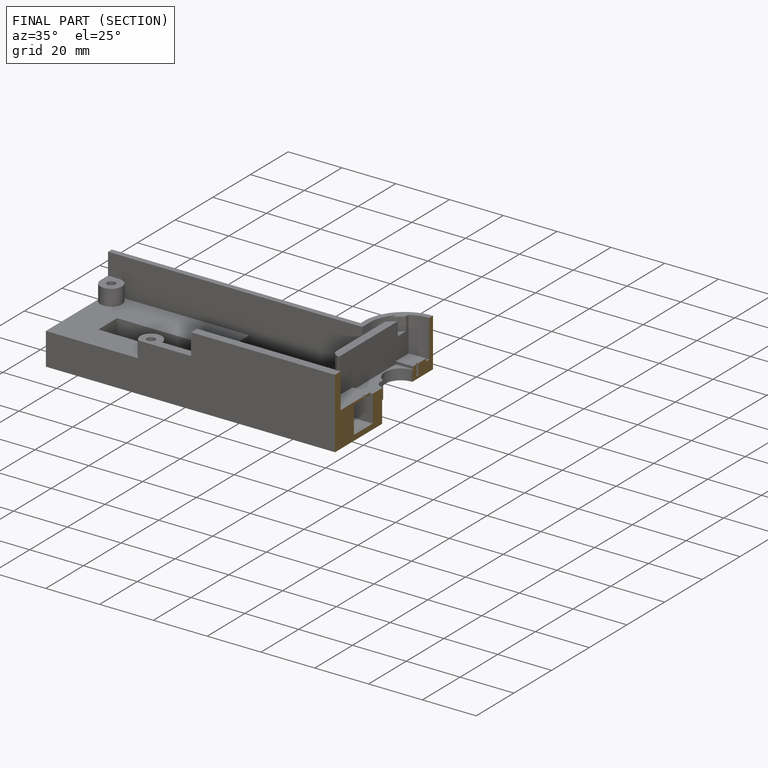
[diagram: finished part — half-section view (interior)]
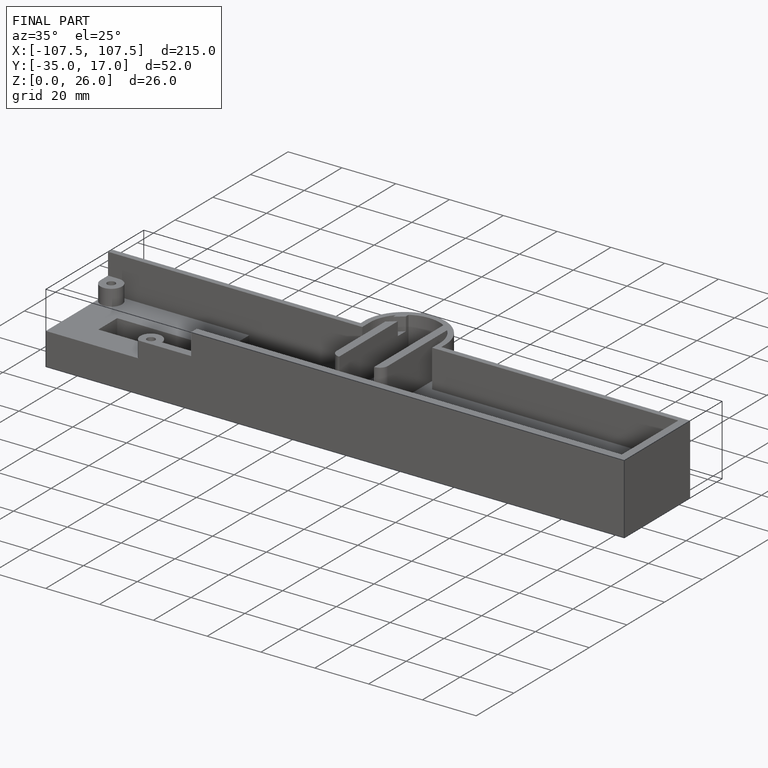
[diagram: finished part — iso view with bounding-box wireframe]
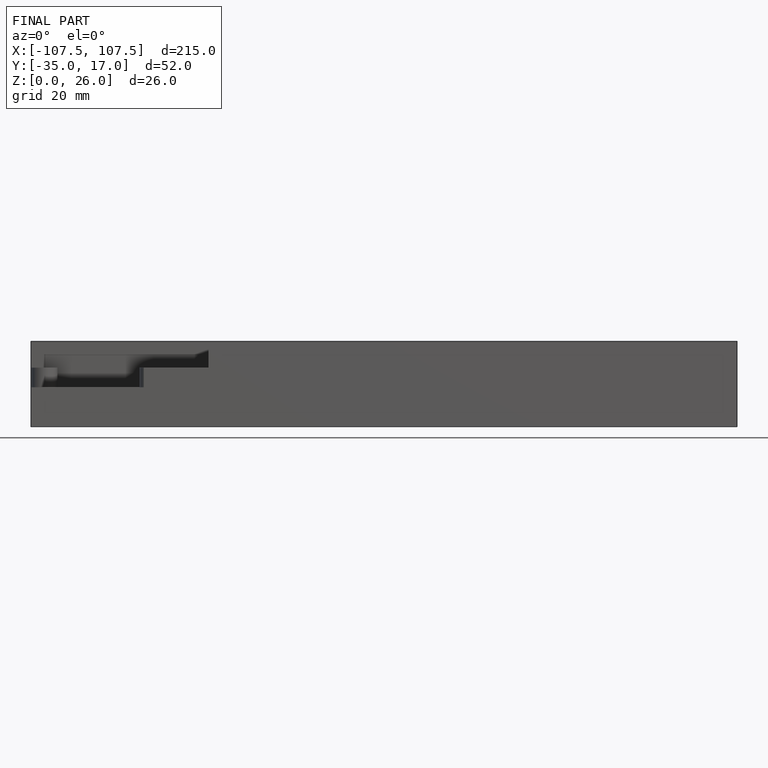
[diagram: finished part — front view with bounding-box wireframe]
